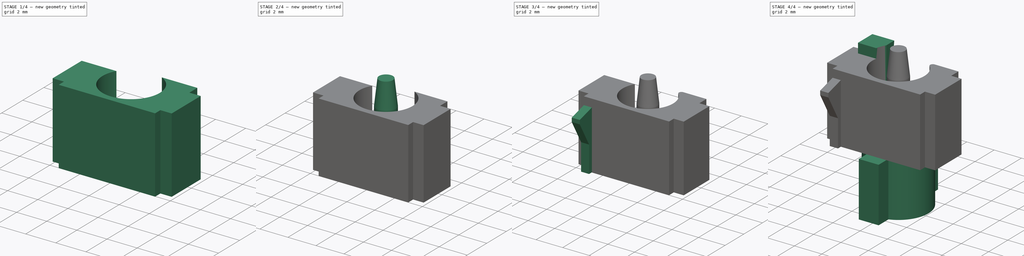
[diagram: build sequence overview — one tinted view per stage of 4, left to right]
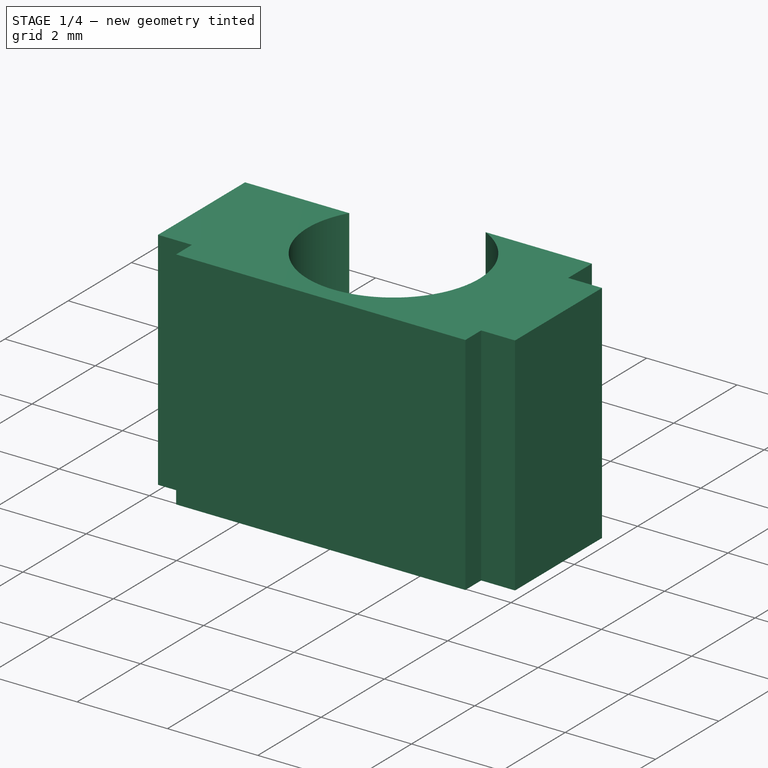
[diagram: stage 1 of 4 — iso view after this stage's code; geometry added in this stage tinted green]
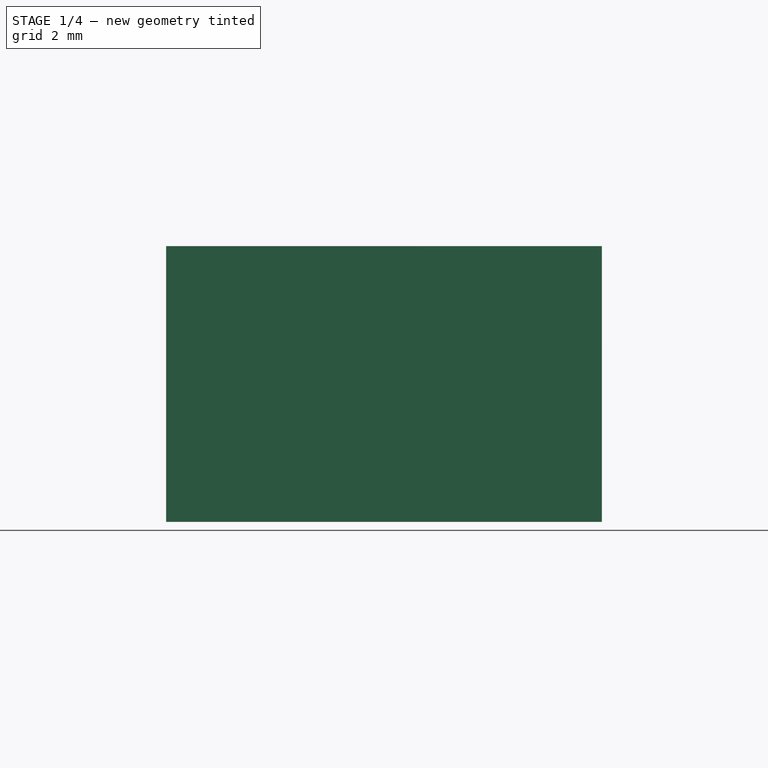
[diagram: stage 1 of 4 — front view after this stage's code; geometry added in this stage tinted green]
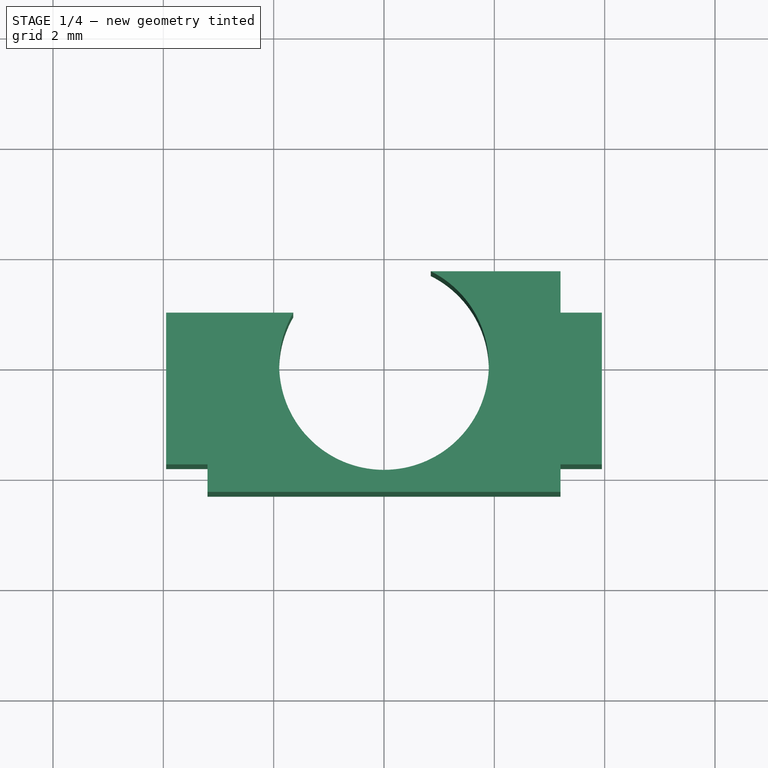
[diagram: stage 1 of 4 — top view after this stage's code; geometry added in this stage tinted green]
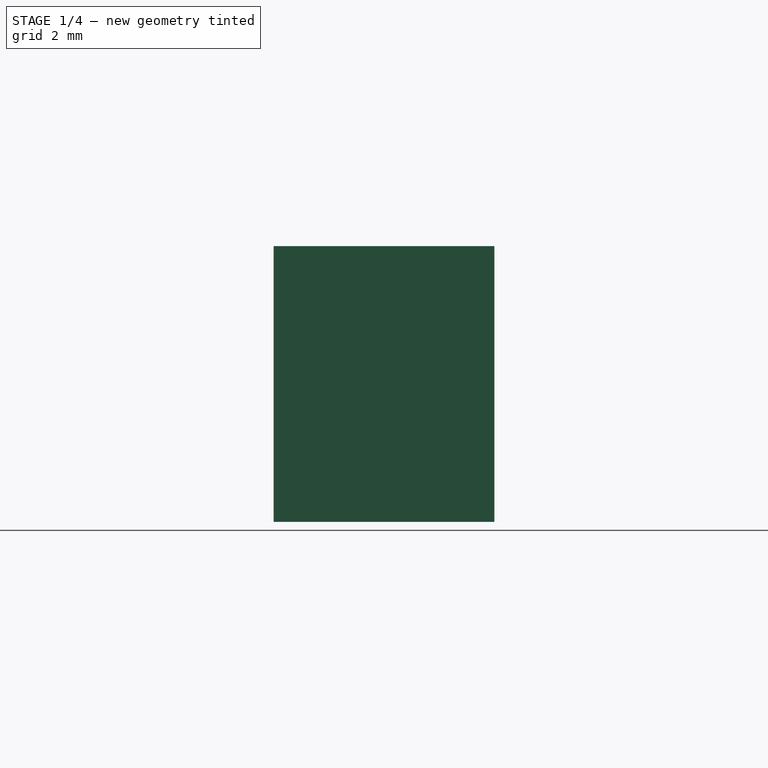
[diagram: stage 1 of 4 — right view after this stage's code; geometry added in this stage tinted green]
FCSTD DOCUMENT  (FreeCAD 1.1R20260325 (Git shallow))
Label: Decent Stem
License: All rights reserved
LicenseURL: https://en.wikipedia.org/wiki/All_rights_reserved
objects: Sketcher::SketchObject×10, PartDesign::Pad×8, PartDesign::Body×2, App::Point×2, PartDesign::AdditiveLoft×1, PartDesign::Fillet×1, Spreadsheet::Sheet×1, PartDesign::Pocket×1
note: 55 computed .brp shape members not serialized (recipe doc carries the construction recipe); baked Part::Feature solids carry a one-line shape summary decoded from their .brp

FEATURE [Sketcher::SketchObject] Sketch
  ArcFitTolerance = 1e-06
  AttachmentSupport = -> [XY_Plane]
  ExternalTypes = [0]
  FullyConstrained = true
  MakeInternals = false
  MapMode = 5
  _ExternalGeoVersion = 0
  sketch-geometry (6):
    g0: LineSegment StartX=-3.2 StartY=-2.3 StartZ=0 EndX=3.2 EndY=-2.3 EndZ=0
    g1: LineSegment StartX=3.2 StartY=-2.3 StartZ=0 EndX=3.2 EndY=1.7 EndZ=0
    g2: LineSegment StartX=3.2 StartY=1.7 StartZ=0 EndX=0.848528 EndY=1.7 EndZ=0
    g3: LineSegment StartX=-1.64545 StartY=0.95 StartZ=0 EndX=-3.2 EndY=0.95 EndZ=0
    g4: LineSegment StartX=-3.2 StartY=0.95 StartZ=0 EndX=-3.2 EndY=-2.3 EndZ=0
    g5: ArcOfCircle CenterX=0 CenterY=0 CenterZ=0 NormalX=0 NormalY=0 NormalZ=1 AngleXU=0 Radius=1.9 StartAngle=2.61799 EndAngle=7.39103
  constraints (17):
    c: Coincident(g0,g1)
    c: Vertical(g1)
    c: Coincident(g1,g2)
    c: Horizontal(g2)
    c: Horizontal(g3)
    c: Coincident(g3,g4)
    c: Coincident(g4,g0)
    c: Vertical(g4)
    c: Symmetric(g0,g0,g-2)
    c: DistanceX(g0,g0) = 6.4
    c: DistanceY(g4,g4) = 3.25
    c: DistanceY(g1,g1) = 4
    c: Coincident(g5,g-1)
    c: Coincident(g5,g2)
    c: Coincident(g5,g3)
    c: Diameter(g5) = 3.8
    c: DistanceY(g0,g5) = 2.3
FEATURE [PartDesign::Pad] Pad  label="Main"
  Direction = (0,0,1)
  Length = 5
  Length2 = 10
  Profile = -> Sketch
  ReferenceAxis = -> Sketch [N_Axis]
  Refine = true
  SideType = 0
  Suppressed = false
  Type = 0
  Type2 = 0
FEATURE [Sketcher::SketchObject] Sketch001
  ArcFitTolerance = 1e-06
  AttachmentSupport = -> [Pad]
  ExternalGeometry = -> [Pad]
  ExternalTypes = [0]
  FullyConstrained = true
  MakeInternals = false
  MapMode = 5
  Placement = pos=(-3.2,0,0) rot=(0.57735,-0.57735,-0.57735;2.0944rad)
  _ExternalGeoVersion = 0
  sketch-geometry (4):
    g0: LineSegment StartX=-0.95 StartY=5 StartZ=0 EndX=-0.95 EndY=0 EndZ=0
    g1: LineSegment StartX=-0.95 StartY=0 StartZ=0 EndX=1.8 EndY=0 EndZ=0
    g2: LineSegment StartX=1.8 StartY=0 StartZ=0 EndX=1.8 EndY=5 EndZ=0
    g3: LineSegment StartX=1.8 StartY=5 StartZ=0 EndX=-0.95 EndY=5 EndZ=0
  constraints (10):
    c: Coincident(g0,g1)
    c: Coincident(g1,g2)
    c: Coincident(g2,g3)
    c: Coincident(g3,g0)
    c: Vertical(g2)
    c: Horizontal(g1)
    c: Horizontal(g3)
    c: Coincident(g0,g-3)
    c: Coincident(g0,g-3)
    c: DistanceX(g3,g3) = 2.75
FEATURE [PartDesign::Pad] Pad001  label="Left rail"
  BaseFeature = -> Pad
  Direction = (-1,0,0)
  Length = 0.75
  Length2 = 10
  Profile = -> Sketch001
  ReferenceAxis = -> Sketch001 [N_Axis]
  Refine = true
  SideType = 0
  Suppressed = false
  Type = 0
  Type2 = 0
FEATURE [Sketcher::SketchObject] Sketch002
  ArcFitTolerance = 1e-06
  AttachmentSupport = -> [Pad001]
  ExternalGeometry = -> [Pad001]
  ExternalTypes = [0]
  FullyConstrained = true
  MakeInternals = false
  MapMode = 5
  Placement = pos=(3.2,0,0) rot=(0.57735,0.57735,0.57735;2.0944rad)
  _ExternalGeoVersion = 0
  sketch-geometry (4):
    g0: LineSegment StartX=-1.8 StartY=5 StartZ=0 EndX=-1.8 EndY=0 EndZ=0
    g1: LineSegment StartX=-1.8 StartY=0 StartZ=0 EndX=0.95 EndY=0 EndZ=0
    g2: LineSegment StartX=0.95 StartY=0 StartZ=0 EndX=0.95 EndY=5 EndZ=0
    g3: LineSegment StartX=0.95 StartY=5 StartZ=0 EndX=-1.8 EndY=5 EndZ=0
  constraints (10):
    c: Coincident(g0,g1)
    c: Coincident(g1,g2)
    c: Coincident(g2,g3)
    c: Coincident(g3,g0)
    c: Vertical(g0)
    c: Vertical(g2)
    c: Horizontal(g1)
    c: Horizontal(g3)
    c: Coincident(g0,g-3)
    c: Coincident(g1,g-4)
FEATURE [PartDesign::Pad] Pad002  label="Right rail"
  BaseFeature = -> Pad001
  Direction = (1,0,0)
  Length = 0.75
  Length2 = 10
  Profile = -> Sketch002
  ReferenceAxis = -> Sketch002 [N_Axis]
  Refine = true
  SideType = 0
  Suppressed = false
  Type = 0
  Type2 = 0
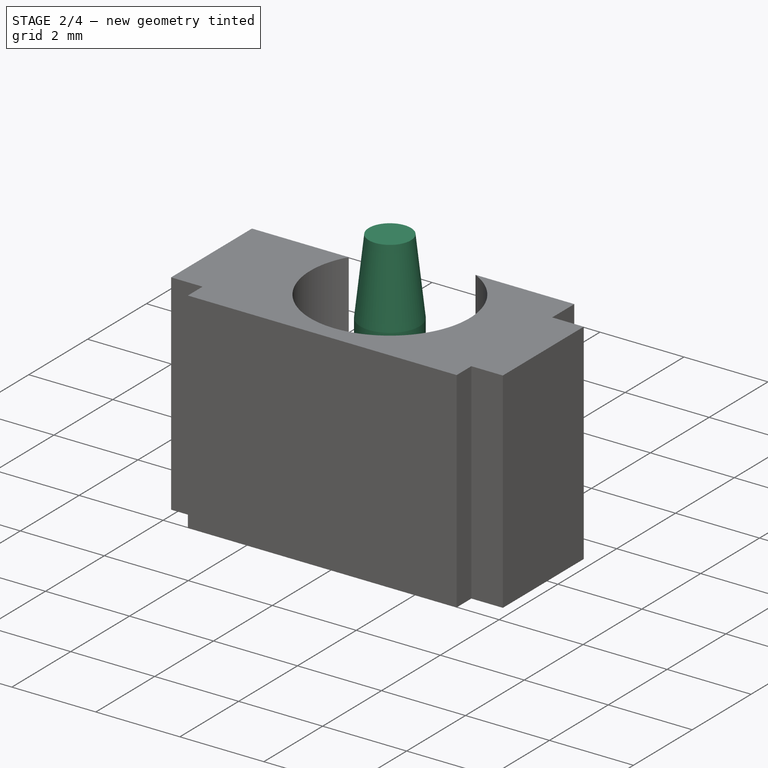
[diagram: stage 2 of 4 — iso view after this stage's code; geometry added in this stage tinted green]
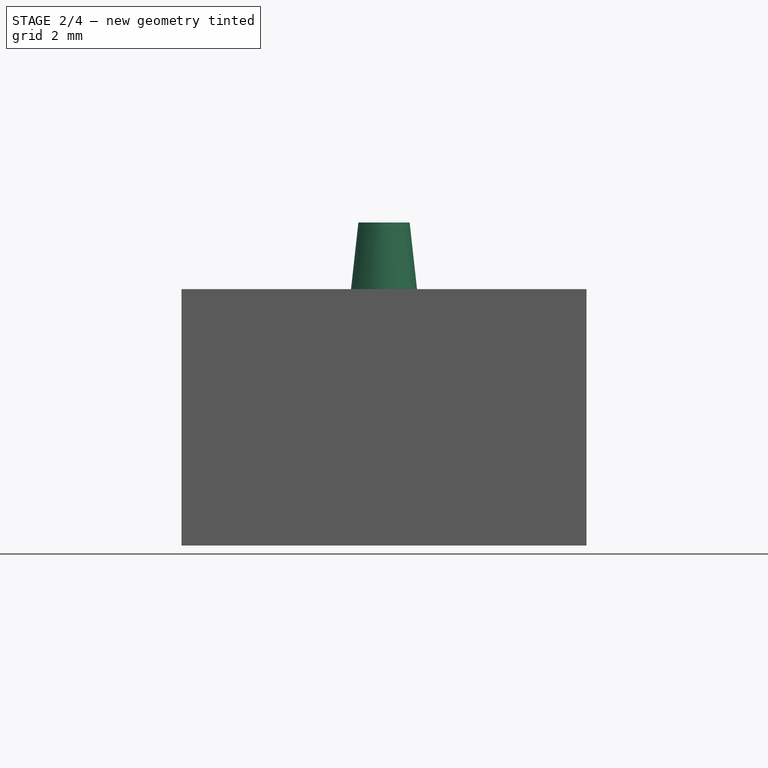
[diagram: stage 2 of 4 — front view after this stage's code; geometry added in this stage tinted green]
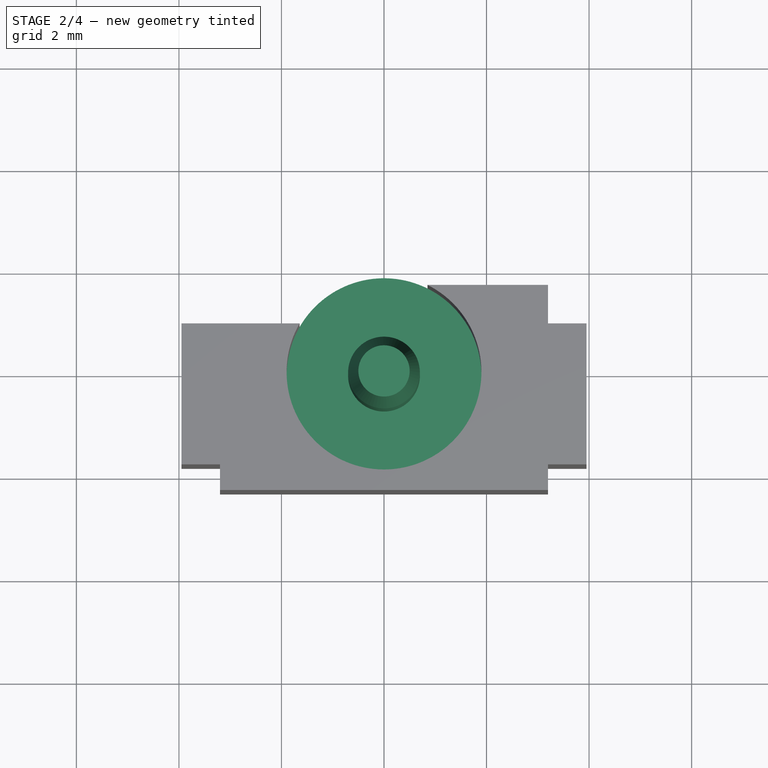
[diagram: stage 2 of 4 — top view after this stage's code; geometry added in this stage tinted green]
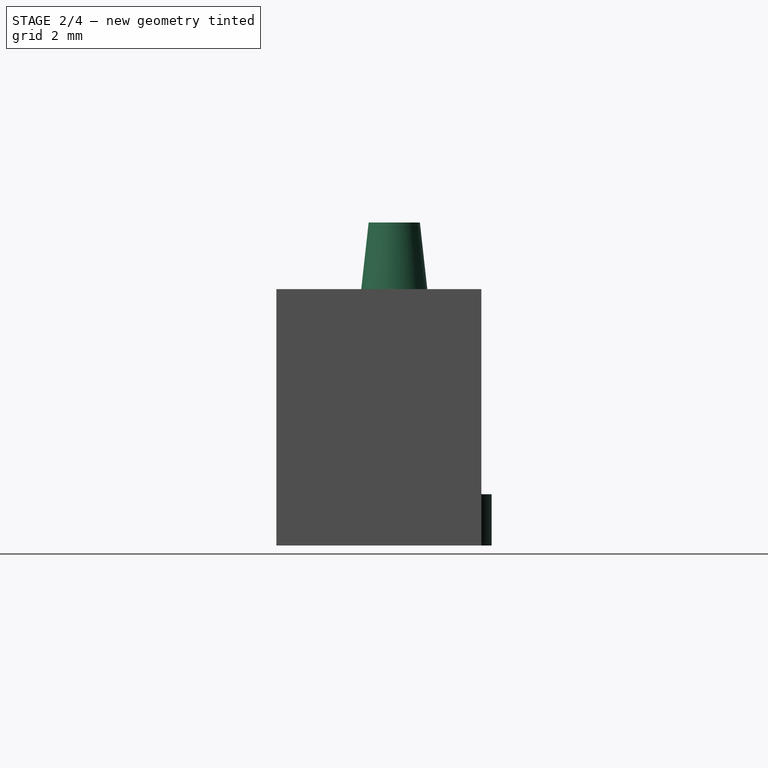
[diagram: stage 2 of 4 — right view after this stage's code; geometry added in this stage tinted green]
FEATURE [Sketcher::SketchObject] Sketch003
  ArcFitTolerance = 1e-06
  AttachmentSupport = -> [XY_Plane]
  ExternalTypes = [0]
  FullyConstrained = true
  MakeInternals = false
  MapMode = 5
  _ExternalGeoVersion = 0
  sketch-geometry (1):
    g0: Circle CenterX=0 CenterY=0 CenterZ=0 NormalX=0 NormalY=0 NormalZ=1 AngleXU=0 Radius=0.7
  constraints (2):
    c: Coincident(g0,g-1)
    c: Diameter(g0) = 1.4
FEATURE [Sketcher::SketchObject] Sketch005
  ArcFitTolerance = 1e-06
  AttachmentSupport = -> [Pad002]
  ExternalGeometry = -> [Pad002]
  ExternalTypes = [0]
  FullyConstrained = true
  MakeInternals = false
  MapMode = 5
  Placement = pos=(0,0,0) rot=(1,0,0;3.14159rad)
  _ExternalGeoVersion = 0
  sketch-geometry (1):
    g0: Circle CenterX=0 CenterY=0 CenterZ=0 NormalX=0 NormalY=0 NormalZ=1 AngleXU=0 Radius=1.9
  constraints (2):
    c: Coincident(g0,g-1)
    c: Equal(g0,g-3)
FEATURE [PartDesign::Pad] Pad005  label="Floor"
  BaseFeature = -> Pad002
  Direction = (0,0,-1)
  Length = 1
  Length2 = 10
  Profile = -> Sketch005
  ReferenceAxis = -> Sketch005 [N_Axis]
  Refine = true
  Reversed = true
  SideType = 0
  Suppressed = false
  Type = 0
  Type2 = 0
FEATURE [PartDesign::Pad] Pad003  label="Column base"
  BaseFeature = -> Pad005
  Direction = (0,0,1)
  Length = 4.5
  Length2 = 10
  Profile = -> Sketch003
  ReferenceAxis = -> Sketch003 [N_Axis]
  Refine = true
  SideType = 0
  Suppressed = false
  Type = 0
  Type2 = 0
FEATURE [Sketcher::SketchObject] Sketch004
  ArcFitTolerance = 1e-06
  AttachmentOffset = pos=(0,0,1.8) rot=(0,0,1;0rad)
  AttachmentSupport = -> [Pad003]
  ExternalTypes = [0]
  FullyConstrained = true
  MakeInternals = false
  MapMode = 5
  Placement = pos=(0,0,6.3) rot=(0,0,1;0rad)
  _ExternalGeoVersion = 0
  sketch-geometry (1):
    g0: Circle CenterX=0 CenterY=0 CenterZ=0 NormalX=0 NormalY=0 NormalZ=1 AngleXU=0 Radius=0.5
  constraints (2):
    c: Coincident(g0,g-1)
    c: Diameter(g0) = 1
FEATURE [PartDesign::AdditiveLoft] AdditiveLoft  label="Column top"
  BaseFeature = -> Pad003
  Closed = false
  Profile = -> Pad003 [Edge44]
  Refine = true
  Ruled = false
  Sections = -> [Sketch004]
  Suppressed = false
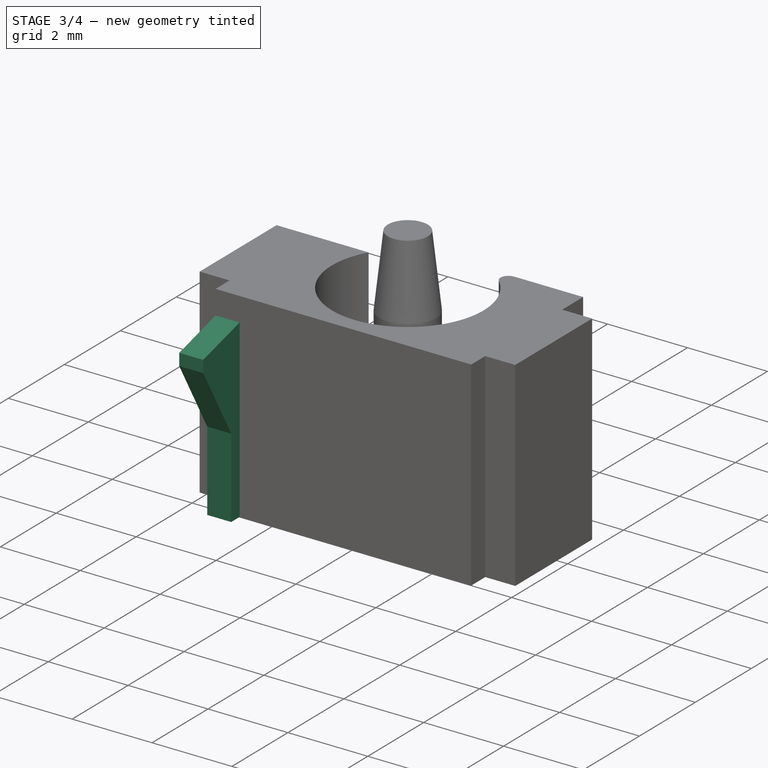
[diagram: stage 3 of 4 — iso view after this stage's code; geometry added in this stage tinted green]
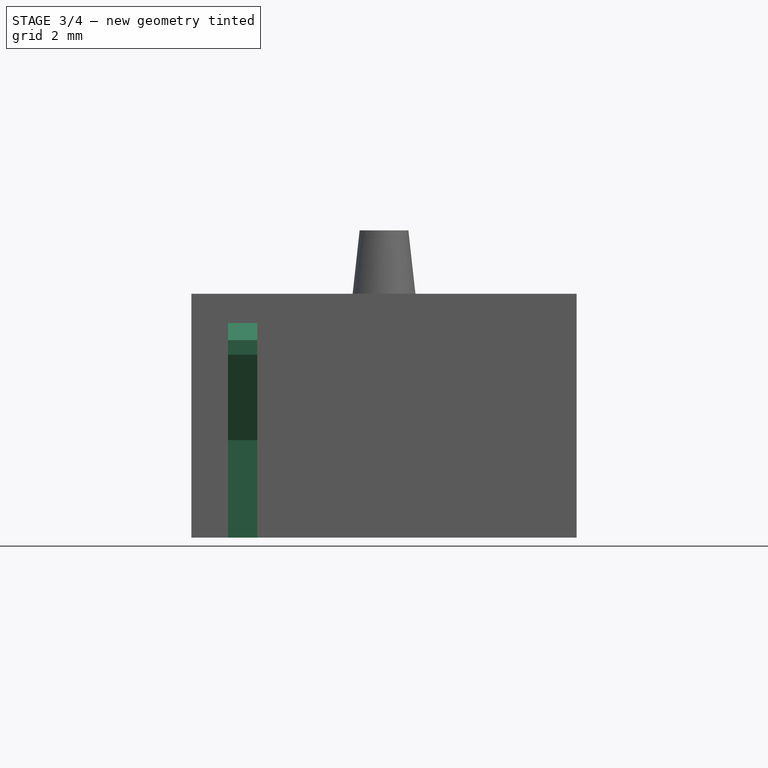
[diagram: stage 3 of 4 — front view after this stage's code; geometry added in this stage tinted green]
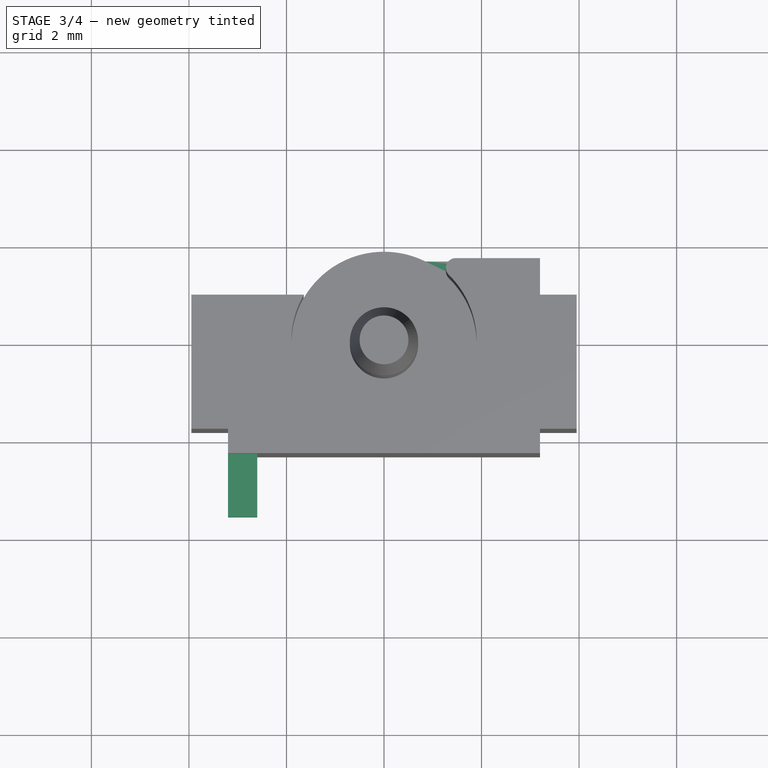
[diagram: stage 3 of 4 — top view after this stage's code; geometry added in this stage tinted green]
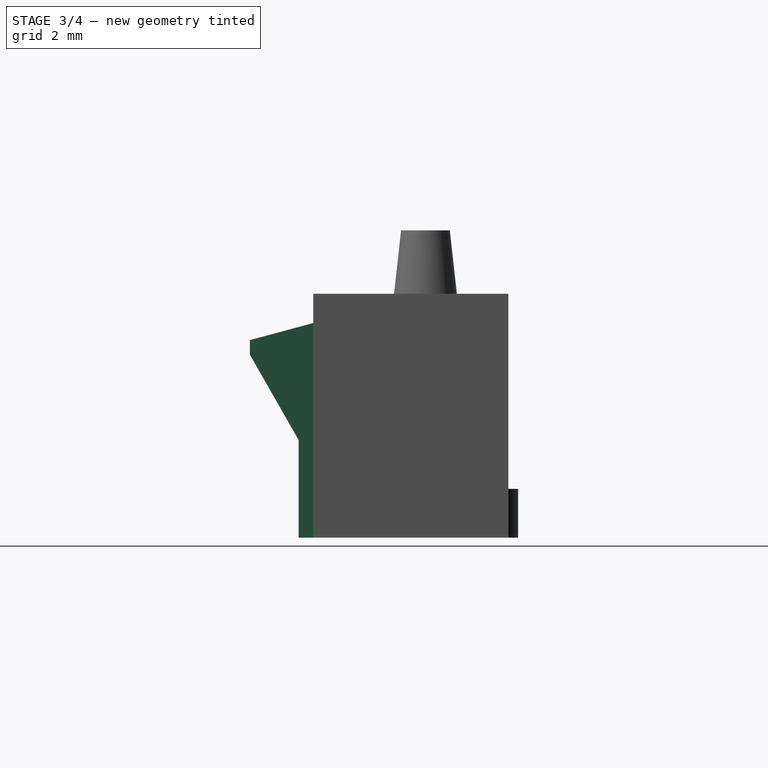
[diagram: stage 3 of 4 — right view after this stage's code; geometry added in this stage tinted green]
FEATURE [Sketcher::SketchObject] Sketch006
  ArcFitTolerance = 1e-06
  AttachmentSupport = -> [AdditiveLoft]
  ExternalGeometry = -> [AdditiveLoft]
  ExternalTypes = [0]
  FullyConstrained = true
  MakeInternals = false
  MapMode = 5
  Placement = pos=(-3.2,0,0) rot=(0.57735,-0.57735,-0.57735;2.0944rad)
  _ExternalGeoVersion = 0
  sketch-geometry (6):
    g0: LineSegment StartX=2.3 StartY=4.4 StartZ=0 EndX=3.6 EndY=4.05 EndZ=0
    g1: LineSegment StartX=3.6 StartY=4.05 StartZ=0 EndX=3.6 EndY=3.75 EndZ=0
    g2: LineSegment StartX=3.6 StartY=3.75 StartZ=0 EndX=2.6 EndY=2 EndZ=0
    g3: LineSegment StartX=2.6 StartY=2 StartZ=0 EndX=2.6 EndY=0 EndZ=0
    g4: LineSegment StartX=2.6 StartY=0 StartZ=0 EndX=2.3 EndY=0 EndZ=0
    g5: LineSegment StartX=2.3 StartY=0 StartZ=0 EndX=2.3 EndY=4.4 EndZ=0
  constraints (18):
    c: PointOnObject(g0,g-3)
    c: Coincident(g0,g1)
    c: Vertical(g1)
    c: Coincident(g1,g2)
    c: Coincident(g2,g3)
    c: Vertical(g3)
    c: Coincident(g3,g4)
    c: PointOnObject(g4,g-3)
    c: Horizontal(g4)
    c: Coincident(g4,g5)
    c: Coincident(g5,g0)
    c: Horizontal(g4,g-3)
    c: DistanceX(g4,g4) = 0.3
    c: DistanceY(g3,g3) = 2
    c: DistanceX(g0,g0) = 1.3
    c: DistanceY(g2,g2) = 1.75
    c: DistanceY(g0,g0) = 0.35
    c: DistanceY(g1,g1) = 0.3
FEATURE [PartDesign::Pad] Pad006  label="Clicker"
  BaseFeature = -> AdditiveLoft
  Direction = (-1,0,0)
  Length = 0.6
  Length2 = 10
  Profile = -> Sketch006
  ReferenceAxis = -> Sketch006 [N_Axis]
  Refine = true
  Reversed = true
  SideType = 0
  Suppressed = false
  Type = 0
  Type2 = 0
FEATURE [PartDesign::Body] Body001  label="XE Round"
  AllowCompound = false
  Group = -> [Sketch007,Pad007]
  Origin = -> Origin001
  Tip = -> Pad007
FEATURE [PartDesign::Fillet] Fillet
  Base = -> Pad006 [Edge20]
  BaseFeature = -> Pad006
  Radius = 0.2
  Refine = true
  SupportTransform = false
  Suppressed = false
  UseAllEdges = false
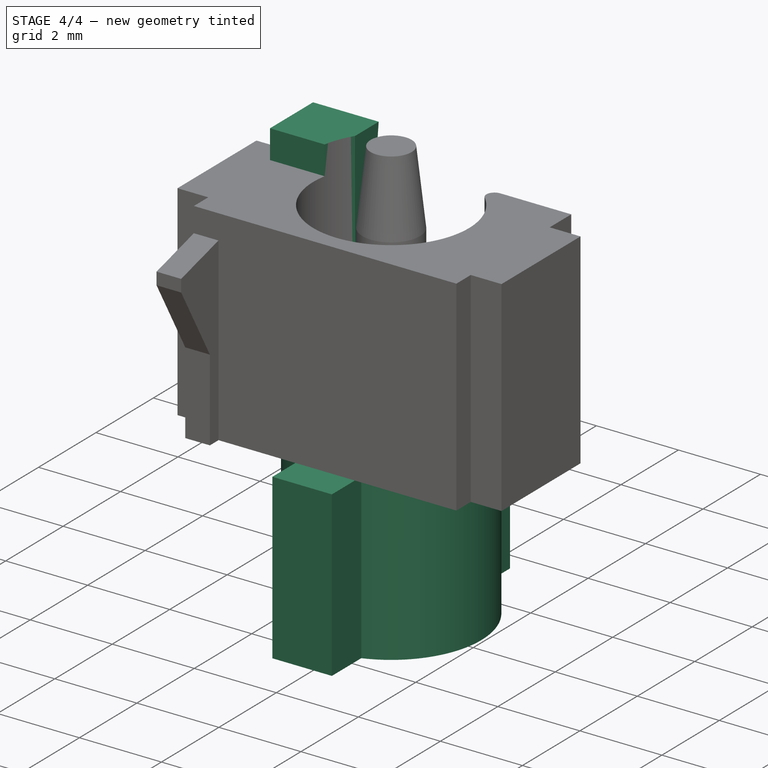
[diagram: stage 4 of 4 — iso view after this stage's code; geometry added in this stage tinted green]
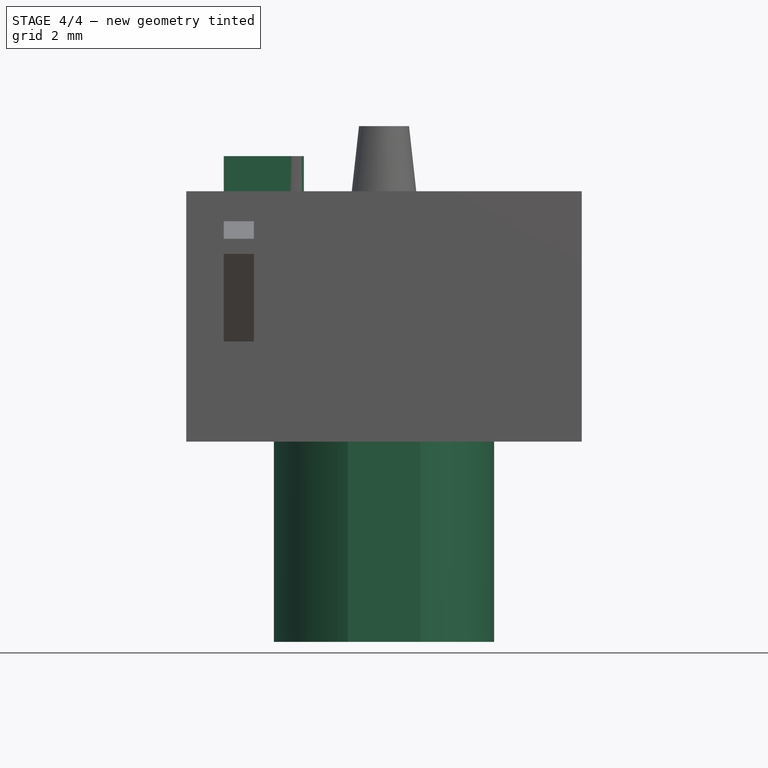
[diagram: stage 4 of 4 — front view after this stage's code; geometry added in this stage tinted green]
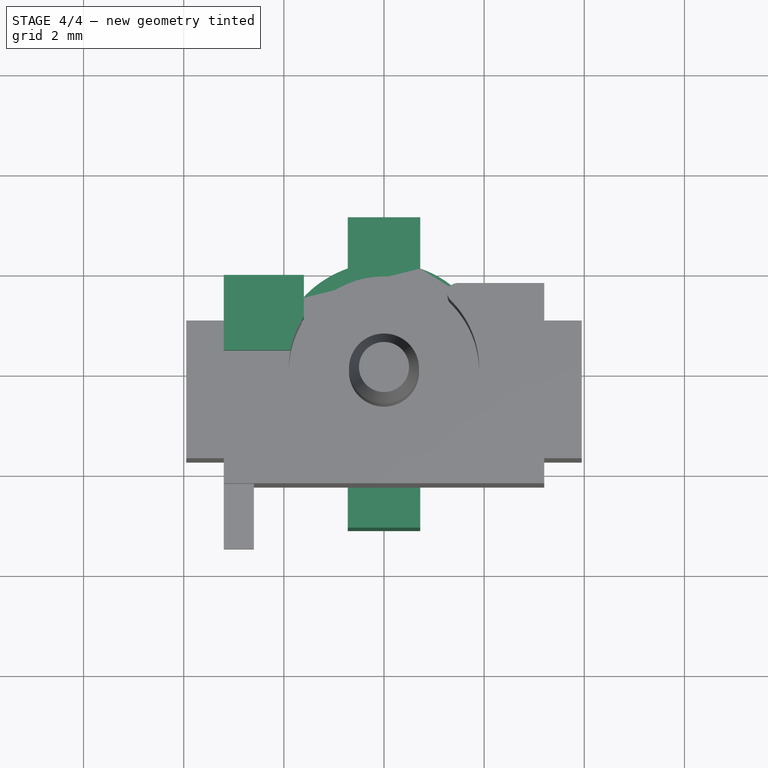
[diagram: stage 4 of 4 — top view after this stage's code; geometry added in this stage tinted green]
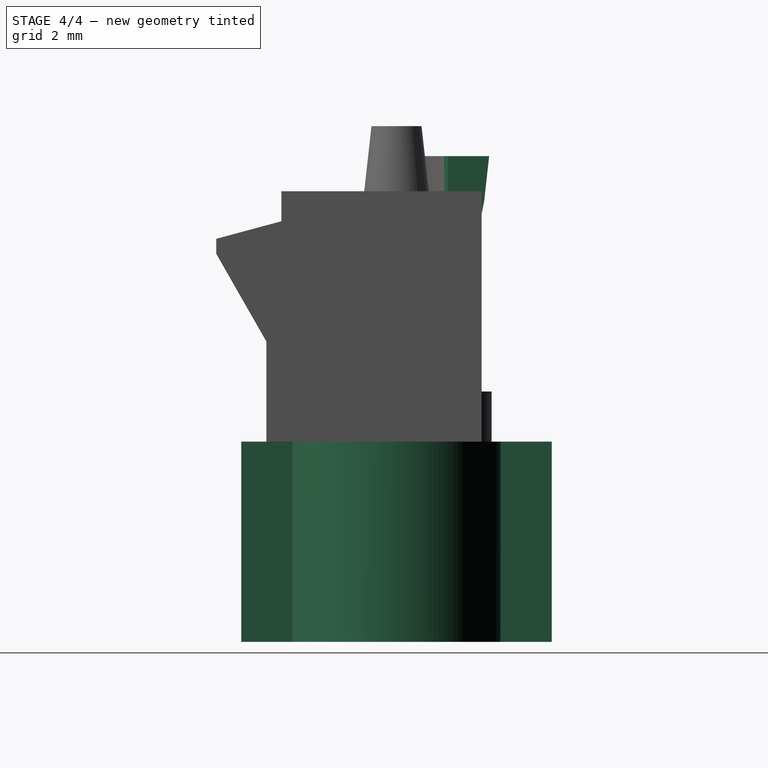
[diagram: stage 4 of 4 — right view after this stage's code; geometry added in this stage tinted green]
FEATURE [Sketcher::SketchObject] Sketch007
  ArcFitTolerance = 1e-06
  AttachmentSupport = -> [XY_Plane001]
  ExternalTypes = [0]
  FullyConstrained = true
  MakeInternals = false
  MapMode = 5
  _ExternalGeoVersion = 0
  sketch-geometry (8):
    g0: LineSegment StartX=-0.725 StartY=3.1 StartZ=0 EndX=0.725 EndY=3.1 EndZ=0
    g1: LineSegment StartX=0.725 StartY=3.1 StartZ=0 EndX=0.725 EndY=2.07711 EndZ=0
    g2: ArcOfCircle CenterX=0 CenterY=0 CenterZ=0 NormalX=0 NormalY=0 NormalZ=1 AngleXU=0 Radius=2.2 StartAngle=5.04821 EndAngle=7.51816
    g3: LineSegment StartX=0.725 StartY=-2.07711 StartZ=0 EndX=0.725 EndY=-3.1 EndZ=0
    g4: LineSegment StartX=0.725 StartY=-3.1 StartZ=0 EndX=-0.725 EndY=-3.1 EndZ=0
    g5: LineSegment StartX=-0.725 StartY=-3.1 StartZ=0 EndX=-0.725 EndY=-2.07711 EndZ=0
    g6: ArcOfCircle CenterX=0 CenterY=0 CenterZ=0 NormalX=0 NormalY=0 NormalZ=1 AngleXU=0 Radius=2.2 StartAngle=1.90662 EndAngle=4.37657
    g7: LineSegment StartX=-0.725 StartY=2.07711 StartZ=0 EndX=-0.725 EndY=3.1 EndZ=0
  constraints (23):
    c: Horizontal(g0)
    c: Coincident(g0,g1)
    c: Coincident(g2,g3)
    c: Vertical(g3)
    c: Coincident(g3,g4)
    c: Horizontal(g4)
    c: Coincident(g4,g5)
    c: Vertical(g5)
    c: Coincident(g6,g7)
    c: Coincident(g7,g0)
    c: Vertical(g7)
    c: Vertical(g1)
    c: Coincident(g2,g-1)
    c: Coincident(g6,g2)
    c: Coincident(g2,g1)
    c: Symmetric(g6,g1,g-2)
    c: Coincident(g6,g5)
    c: Vertical(g6,g5)
    c: Vertical(g1,g2)
    c: Equal(g1,g3)
    c: Radius(g2) = 2.2
    c: DistanceX(g0,g0) = 1.45
    c: DistanceY(g4,g0) = 6.2
FEATURE [PartDesign::Pad] Pad007
  Direction = (0,0,1)
  Length = 4
  Length2 = 10
  Profile = -> Sketch007
  ReferenceAxis = -> Sketch007 [N_Axis]
  Refine = true
  Reversed = true
  SideType = 0
  Suppressed = false
  Type = 0
  Type2 = 0
FEATURE [Sketcher::SketchObject] Sketch008
  ArcFitTolerance = 1e-06
  AttachmentSupport = -> [Pad]
  ExternalGeometry = -> [Fillet]
  ExternalTypes = [0]
  FullyConstrained = true
  MakeInternals = false
  MapMode = 5
  Placement = pos=(-3.2,0,0) rot=(0.57735,-0.57735,-0.57735;2.0944rad)
  _ExternalGeoVersion = 0
  expr: Constraints[12] = <<Data>>.BreakerHeight1
  expr: Constraints[13] = <<Data>>.BreakerHeight2
  expr: Constraints[14] = <<Data>>.BreakerHeight3
  expr: Constraints[15] = <<Data>>.BreakerHeight4
  sketch-geometry (7):
    g0: LineSegment StartX=-0.35 StartY=5.7 StartZ=0 EndX=-1.85 EndY=5.7 EndZ=0
    g1: LineSegment StartX=-1.85 StartY=5.7 StartZ=0 EndX=-1.75 EndY=4.8 EndZ=0
    g2: LineSegment StartX=-1.75 StartY=4.8 StartZ=0 EndX=-1.65 EndY=4.3 EndZ=0
    g3: LineSegment StartX=-0.95 StartY=2.4 StartZ=0 EndX=-0.35 EndY=2.4 EndZ=0
    g4: LineSegment StartX=-0.35 StartY=2.4 StartZ=0 EndX=-0.35 EndY=5.7 EndZ=0
    g5: LineSegment StartX=-1.65 StartY=4.3 StartZ=0 EndX=-1.05 EndY=2.7 EndZ=0
    g6: LineSegment StartX=-1.05 StartY=2.7 StartZ=0 EndX=-0.95 EndY=2.4 EndZ=0
  constraints (21):
    c: Horizontal(g0)
    c: Coincident(g0,g1)
    c: Coincident(g1,g2)
    c: Coincident(g2,g5)
    c: PointOnObject(g6,g-3)
    c: Coincident(g6,g3)
    c: Horizontal(g3)
    c: Coincident(g3,g4)
    c: Coincident(g4,g0)
    c: Vertical(g4)
    c: Coincident(g5,g6)
    c: DistanceX(g-3,g0) = 0.6
    c: DistanceX(g0,g-3) = 0.9
    c: DistanceX(g1,g-3) = 0.8
    c: DistanceX(g2,g-3) = 0.7
    c: DistanceX(g5,g-3) = 0.1
    c: DistanceY(g-3,g0) = 0.7
    c: DistanceY(g1,g0) = 0.9
    c: DistanceY(g2,g0) = 1.4
    c: DistanceY(g5,g0) = 3
    c: DistanceY(g3,g0) = 3.3
FEATURE [Spreadsheet::Sheet] Spreadsheet  label="Data"
  cells = A1='Variant; B1='BreakerHeight1; C1='BreakerHeight2; D1='BreakerHeight3; E1='BreakerHeight4; A2==hiddenref(Body.Configuration.String); B2(BreakerHeight1)==.B5; C2(BreakerHeight2)==.C5; D2(BreakerHeight3)==.D5; E2(BreakerHeight4)==.E5; A3='Clicky; B3=0.9; C3=0.75; D3=0.6; E3=0; A4='Tactile; B4=0.7; C4=0.4; D4=0.7; E4=0; A5='Linear; B5=0.9; C5=0.8; D5=0.7; E5=0.1
  expr: .cells.Bind.B2.E2 = tuple(.cells; <<B>> + str(hiddenref(Body.Configuration) + 3); <<E>> + str(hiddenref(Body.Configuration) + 3))
FEATURE [PartDesign::Pad] Pad008  label="Breaker"
  BaseFeature = -> Fillet
  Direction = (-1,0,0)
  Length = 1.6
  Length2 = 10
  Profile = -> Sketch008
  ReferenceAxis = -> Sketch008 [N_Axis]
  Refine = true
  Reversed = true
  SideType = 0
  Suppressed = false
  Type = 0
  Type2 = 0
FEATURE [Sketcher::SketchObject] Sketch009
  ArcFitTolerance = 1e-06
  AttachmentSupport = -> [Pad008]
  ExternalGeometry = -> [Pad008]
  ExternalTypes = [0]
  FullyConstrained = true
  MakeInternals = false
  MapMode = 5
  Placement = pos=(0,0,1) rot=(0,0,1;0rad)
  _ExternalGeoVersion = 0
  sketch-geometry (3):
    g0: LineSegment StartX=-0.9 StartY=1.67332 StartZ=0 EndX=-0.7 EndY=1.67332 EndZ=0
    g1: LineSegment StartX=-0.7 StartY=1.67332 StartZ=0 EndX=-0.7 EndY=-1.76635 EndZ=0
    g2: ArcOfCircle CenterX=0 CenterY=0 CenterZ=0 NormalX=0 NormalY=0 NormalZ=1 AngleXU=0 Radius=1.9 StartAngle=2.06427 EndAngle=4.33508
  constraints (9):
    c: Coincident(g0,g1)
    c: Vertical(g1)
    c: Horizontal(g0)
    c: PointOnObject(g1,g-3)
    c: Coincident(g2,g-1)
    c: Coincident(g2,g1)
    c: Coincident(g2,g0)
    c: Tangent(g1,g-4)
    c: DistanceX(g0,g0) = 0.2
FEATURE [PartDesign::Pocket] Pocket
  BaseFeature = -> Pad008
  Direction = (0,0,-1)
  Length = 5
  Length2 = 5
  Profile = -> Sketch009
  ReferenceAxis = -> Sketch009 [N_Axis]
  Refine = true
  Reversed = true
  SideType = 0
  Suppressed = false
  Type = 1
  Type2 = 0
FEATURE [PartDesign::Body] Body  label="Kailh Stem Base"
  AllowCompound = false
  Configuration = 2
  Group = -> [Sketch,Pad,Sketch001,Pad001,Sketch002,Pad002,Sketch005,Pad005,Sketch003,Pad003,Sketch004,AdditiveLoft,Sketch006,Pad006,Fillet,Sketch008,Pad008,Sketch009,Pocket]
  Origin = -> Origin
  Tip = -> Pocket
  expr: .Configuration.Enum = Spreadsheet.cells[<<A3:|>>]
FEATURE [App::Point] Origin002  label="Origin"
  Role = Origin
FEATURE [App::Point] Origin003  label="Origin"
  Role = Origin
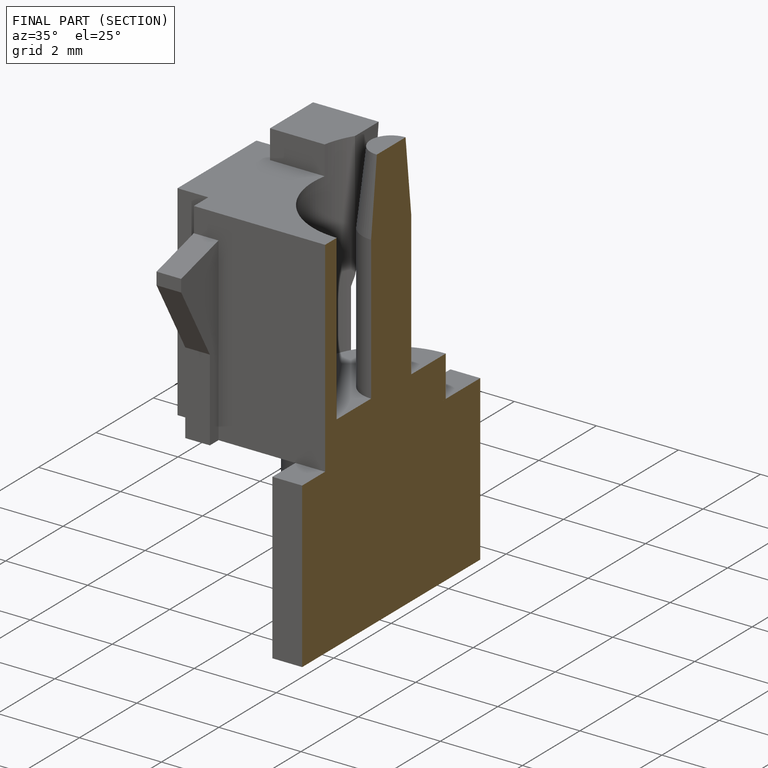
[diagram: finished part — half-section view (interior)]
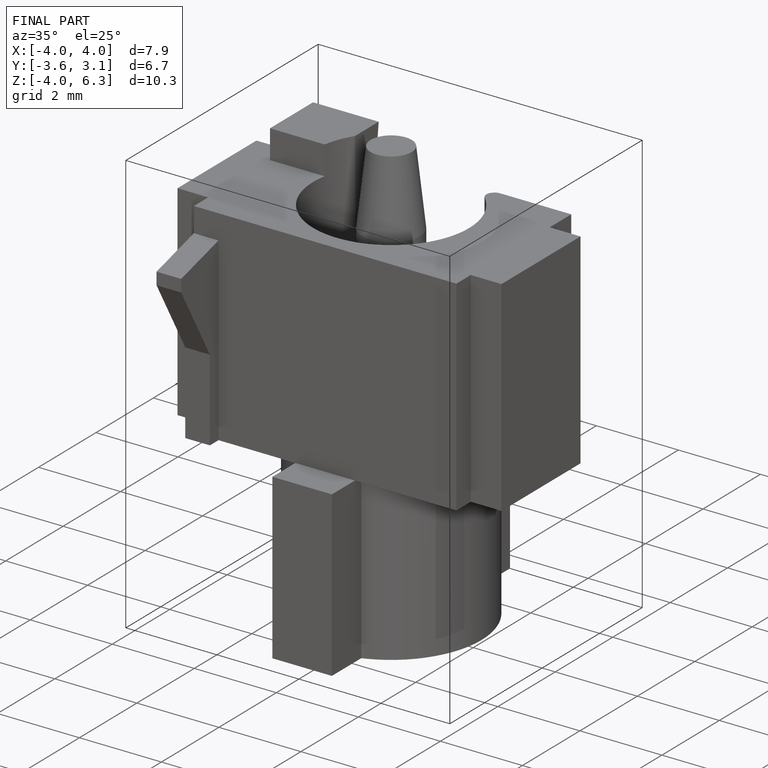
[diagram: finished part — iso view with bounding-box wireframe]
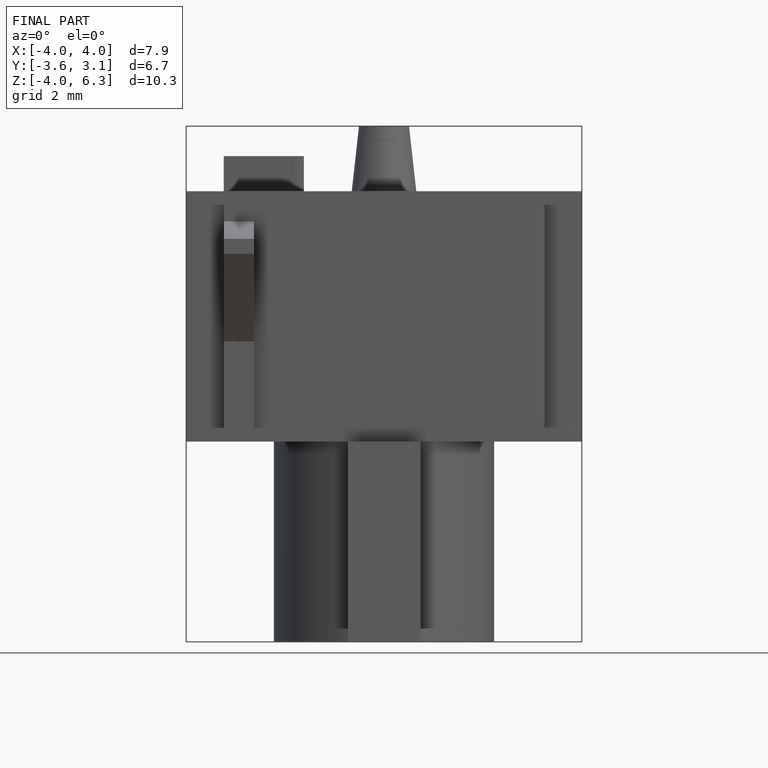
[diagram: finished part — front view with bounding-box wireframe]
